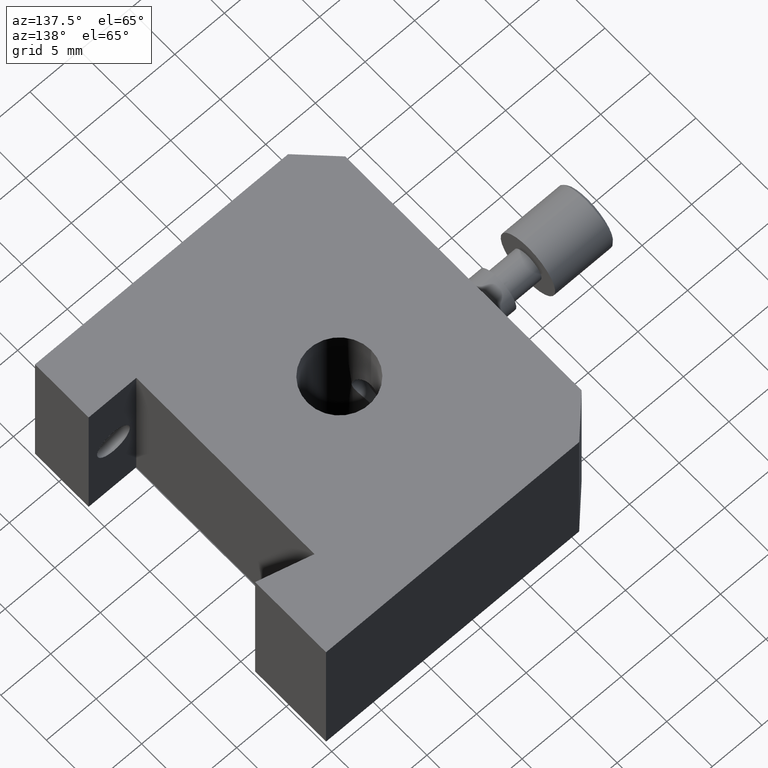
[diagram: clean part render]
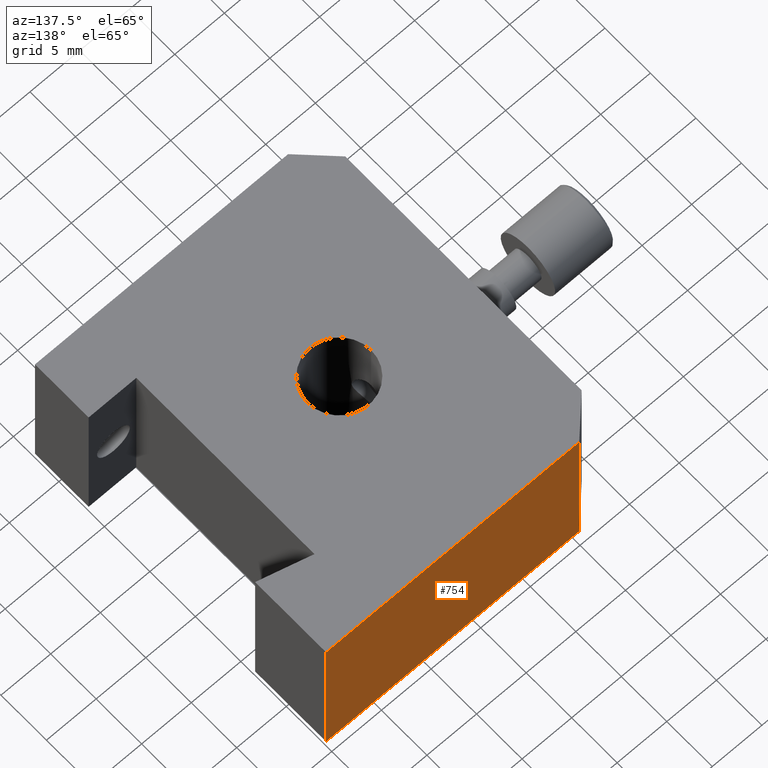
[diagram: same view with one face highlighted and labeled with its STEP entity id]
A machine part, auxiliary view. The second image highlights one B-rep face of the part: STEP entity #754.
In plain terms, the highlighted planar face has unit normal (0, -1, 0).
Its self-contained STEP definition (entity closure, byte-faithful):
#18 = PLANE ( 'NONE',  #622 ) ;
#42 = DIRECTION ( 'NONE',  ( 0.0000000000000000000, 0.0000000000000000000, 1.000000000000000000 ) ) ;
#80 = ORIENTED_EDGE ( 'NONE', *, *, #292, .T. ) ;
#100 = VERTEX_POINT ( 'NONE', #505 ) ;
#161 = VECTOR ( 'NONE', #226, 1000.000000000000000 ) ;
#186 = DIRECTION ( 'NONE',  ( 0.0000000000000000000, -1.000000000000000000, 0.0000000000000000000 ) ) ;
#192 = LINE ( 'NONE', #513, #731 ) ;
#226 = DIRECTION ( 'NONE',  ( -1.000000000000000000, -0.0000000000000000000, -0.0000000000000000000 ) ) ;
#285 = EDGE_CURVE ( 'NONE', #100, #405, #1006, .T. ) ;
#286 = VERTEX_POINT ( 'NONE', #287 ) ;
#287 = CARTESIAN_POINT ( 'NONE',  ( -15.47347206599173800, 14.40019997500335200, 39.84999999999999400 ) ) ;
#290 = VERTEX_POINT ( 'NONE', #431 ) ;
#292 = EDGE_CURVE ( 'NONE', #290, #286, #192, .T. ) ;
#356 = LINE ( 'NONE', #839, #161 ) ;
#367 = VECTOR ( 'NONE', #944, 1000.000000000000000 ) ;
#405 = VERTEX_POINT ( 'NONE', #918 ) ;
#431 = CARTESIAN_POINT ( 'NONE',  ( -15.47347206599173800, 14.40019997500335200, 24.15000000000000200 ) ) ;
#445 = DIRECTION ( 'NONE',  ( -1.000000000000000000, -0.0000000000000000000, -0.0000000000000000000 ) ) ;
#505 = CARTESIAN_POINT ( 'NONE',  ( 10.02652793400824600, 14.40019997500335200, 39.84999999999999400 ) ) ;
#513 = CARTESIAN_POINT ( 'NONE',  ( -15.47347206599173800, 14.40019997500335200, 39.84999999999999400 ) ) ;
#542 = EDGE_LOOP ( 'NONE', ( #735, #80, #579, #850 ) ) ;
#579 = ORIENTED_EDGE ( 'NONE', *, *, #662, .F. ) ;
#622 = AXIS2_PLACEMENT_3D ( 'NONE', #643, #186, #718 ) ;
#633 = CARTESIAN_POINT ( 'NONE',  ( 10.02652793400824600, 14.40019997500335200, 39.84999999999999400 ) ) ;
#643 = CARTESIAN_POINT ( 'NONE',  ( -18.47347206599175400, 14.40019997500335200, 39.84999999999999400 ) ) ;
#654 = FACE_OUTER_BOUND ( 'NONE', #542, .T. ) ;
#662 = EDGE_CURVE ( 'NONE', #100, #286, #356, .T. ) ;
#718 = DIRECTION ( 'NONE',  ( 0.0000000000000000000, -0.0000000000000000000, -1.000000000000000000 ) ) ;
#731 = VECTOR ( 'NONE', #42, 1000.000000000000000 ) ;
#735 = ORIENTED_EDGE ( 'NONE', *, *, #893, .T. ) ;
#754 = ADVANCED_FACE ( 'NONE', ( #654 ), #18, .F. ) ;
#813 = LINE ( 'NONE', #978, #994 ) ;
#839 = CARTESIAN_POINT ( 'NONE',  ( -18.47347206599175400, 14.40019997500335200, 39.84999999999999400 ) ) ;
#850 = ORIENTED_EDGE ( 'NONE', *, *, #285, .T. ) ;
#893 = EDGE_CURVE ( 'NONE', #405, #290, #813, .T. ) ;
#918 = CARTESIAN_POINT ( 'NONE',  ( 10.02652793400824600, 14.40019997500335200, 24.15000000000000200 ) ) ;
#944 = DIRECTION ( 'NONE',  ( -0.0000000000000000000, -0.0000000000000000000, -1.000000000000000000 ) ) ;
#978 = CARTESIAN_POINT ( 'NONE',  ( -18.47347206599175400, 14.40019997500335200, 24.15000000000000200 ) ) ;
#994 = VECTOR ( 'NONE', #445, 1000.000000000000000 ) ;
#1006 = LINE ( 'NONE', #633, #367 ) ;